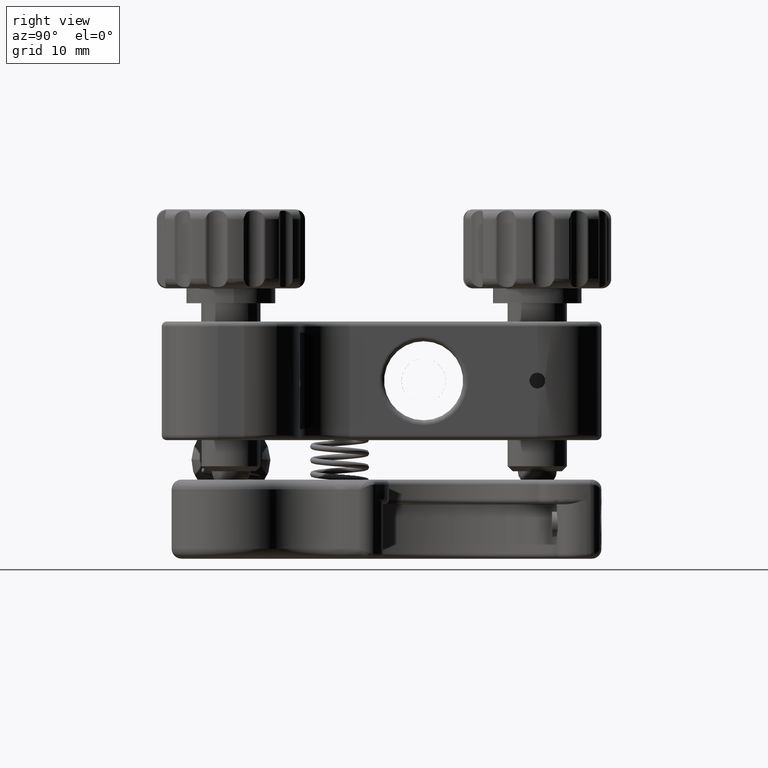
[diagram: clean part render]
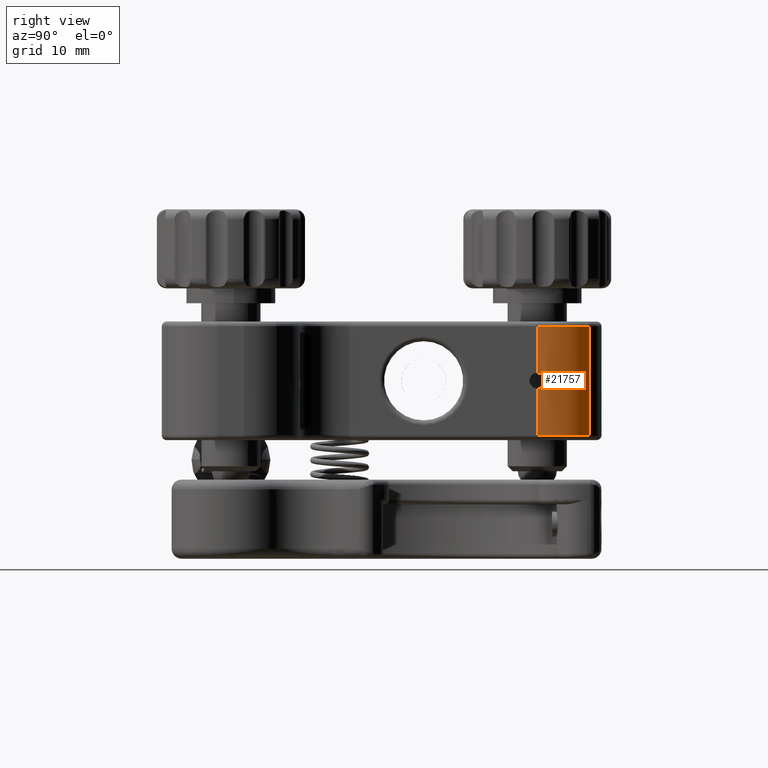
[diagram: same view with one face highlighted and labeled with its STEP entity id]
A machine part, right view. The second image highlights one B-rep face of the part: STEP entity #21757.
In plain terms, the highlighted cylindrical surface (partial cylindrical patch) has radius 7 mm, axis along (0, 0, 1).
Its self-contained STEP definition (entity closure, byte-faithful):
#242 = DIRECTION ( 'NONE',  ( 1.526985608128896422E-16, 6.608597787526282327E-17, 1.000000000000000000 ) ) ;
#357 = B_SPLINE_CURVE_WITH_KNOTS ( 'NONE', 3,
 ( #16258, #19820, #10726, #7280, #2014, #9257, #14578, #10957, #8910, #19559, #10607, #15927, #21300, #9143 ),
 .UNSPECIFIED., .F., .F.,
 ( 4, 2, 2, 2, 2, 2, 4 ),
 ( 0.000000000000000000, 0.0003128303503072560744, 0.0006256607006145121488, 0.001251321401229009769, 0.001564151751536258309, 0.001876982101843506631, 0.002502642802458018238 ),
 .UNSPECIFIED. ) ;
#1129 = CYLINDRICAL_SURFACE ( 'NONE', #8496, 6.999999999999992006 ) ;
#2014 = CARTESIAN_POINT ( 'NONE',  ( -47.59911815931402401, 31.49197153707026331, 0.6394026485472136256 ) ) ;
#2753 = LINE ( 'NONE', #9452, #16374 ) ;
#2834 = FACE_OUTER_BOUND ( 'NONE', #20116, .T. ) ;
#2954 = DIRECTION ( 'NONE',  ( 1.526985608128896422E-16, 6.608597787526282327E-17, 1.000000000000000000 ) ) ;
#3072 = EDGE_CURVE ( 'NONE', #20491, #7126, #357, .T. ) ;
#3120 = ORIENTED_EDGE ( 'NONE', *, *, #6143, .T. ) ;
#3160 = CARTESIAN_POINT ( 'NONE',  ( -54.58220024130405079, 30.99999999999994316, 5.500000000000006217 ) ) ;
#3630 = EDGE_CURVE ( 'NONE', #20491, #18432, #2753, .T. ) ;
#4052 = ORIENTED_EDGE ( 'NONE', *, *, #20620, .T. ) ;
#5299 = DIRECTION ( 'NONE',  ( -1.526985608128896422E-16, -6.608597787526282327E-17, -1.000000000000000000 ) ) ;
#5392 = DIRECTION ( 'NONE',  ( 1.526985608128896422E-16, 6.608597787526282327E-17, 1.000000000000000000 ) ) ;
#5457 = AXIS2_PLACEMENT_3D ( 'NONE', #9107, #19527, #19024 ) ;
#5885 = ORIENTED_EDGE ( 'NONE', *, *, #3630, .F. ) ;
#6143 = EDGE_CURVE ( 'NONE', #10446, #18432, #10915, .T. ) ;
#6549 = ORIENTED_EDGE ( 'NONE', *, *, #3072, .T. ) ;
#7126 = VERTEX_POINT ( 'NONE', #17946 ) ;
#7179 = CARTESIAN_POINT ( 'NONE',  ( -49.95213544694114205, 36.24999999999995026, 5.499999999999998224 ) ) ;
#7280 = CARTESIAN_POINT ( 'NONE',  ( -47.59315459229183176, 31.40328554863170041, 0.6988233077634544710 ) ) ;
#8157 = CARTESIAN_POINT ( 'NONE',  ( -54.58220024130411474, 30.99999999999994316, -5.999999999999992895 ) ) ;
#8496 = AXIS2_PLACEMENT_3D ( 'NONE', #8157, #2954, #11718 ) ;
#8799 = VERTEX_POINT ( 'NONE', #11708 ) ;
#8802 = CIRCLE ( 'NONE', #5457, 6.999999999999992006 ) ;
#8910 = CARTESIAN_POINT ( 'NONE',  ( -47.62560615490236415, 31.77937269299374634, -0.2087427562612615417 ) ) ;
#9107 = CARTESIAN_POINT ( 'NONE',  ( -54.58220024130411474, 30.99999999999994316, -5.499999999999992895 ) ) ;
#9143 = CARTESIAN_POINT ( 'NONE',  ( -47.58220024130410764, 30.99999999999994316, -0.8000000000000012657 ) ) ;
#9257 = CARTESIAN_POINT ( 'NONE',  ( -47.61705126712233493, 31.71315159387564364, 0.4182125837161660975 ) ) ;
#9452 = CARTESIAN_POINT ( 'NONE',  ( -47.58220024130410764, 30.99999999999994316, -6.000000000000001776 ) ) ;
#10115 = ORIENTED_EDGE ( 'NONE', *, *, #20755, .F. ) ;
#10446 = VERTEX_POINT ( 'NONE', #7179 ) ;
#10607 = CARTESIAN_POINT ( 'NONE',  ( -47.61117838852523221, 31.64066944041366725, -0.4906018938186298972 ) ) ;
#10726 = CARTESIAN_POINT ( 'NONE',  ( -47.58466682728106179, 31.20958157682242984, 0.7791462069889498743 ) ) ;
#10915 = CIRCLE ( 'NONE', #20499, 6.999999999999992006 ) ;
#10957 = CARTESIAN_POINT ( 'NONE',  ( -47.62807340611181672, 31.80007497510262837, -0.1038509294795479376 ) ) ;
#11698 = CARTESIAN_POINT ( 'NONE',  ( -49.95213544694119889, 36.24999999999995026, -5.500000000000001776 ) ) ;
#11708 = CARTESIAN_POINT ( 'NONE',  ( -47.58220024130410764, 30.99999999999994316, -5.500000000000001776 ) ) ;
#11718 = DIRECTION ( 'NONE',  ( -1.000000000000000000, 0.000000000000000000, 1.239088197126292296E-16 ) ) ;
#12227 = CARTESIAN_POINT ( 'NONE',  ( -47.58220024130410764, 30.99999999999994316, 5.499999999999998224 ) ) ;
#12374 = LINE ( 'NONE', #13257, #20420 ) ;
#13257 = CARTESIAN_POINT ( 'NONE',  ( -47.58220024130410764, 30.99999999999994316, -6.000000000000001776 ) ) ;
#14578 = CARTESIAN_POINT ( 'NONE',  ( -47.62804745927792283, 31.79984942779633172, 0.2094297452871510257 ) ) ;
#15403 = DIRECTION ( 'NONE',  ( 1.000000000000000000, 0.000000000000000000, -1.239088197126292296E-16 ) ) ;
#15927 = CARTESIAN_POINT ( 'NONE',  ( -47.59301916846070668, 31.41684523052366274, -0.7147239006662191585 ) ) ;
#16258 = CARTESIAN_POINT ( 'NONE',  ( -47.58220024130410764, 30.99999999999994316, 0.7999999999999960476 ) ) ;
#16374 = VECTOR ( 'NONE', #18065, 1000.000000000000000 ) ;
#16597 = ORIENTED_EDGE ( 'NONE', *, *, #17959, .T. ) ;
#17946 = CARTESIAN_POINT ( 'NONE',  ( -47.58220024130410764, 30.99999999999994316, -0.8000000000000012657 ) ) ;
#17959 = EDGE_CURVE ( 'NONE', #8799, #20395, #8802, .T. ) ;
#18065 = DIRECTION ( 'NONE',  ( 1.526985608128896422E-16, 6.608597787526282327E-17, 1.000000000000000000 ) ) ;
#18432 = VERTEX_POINT ( 'NONE', #12227 ) ;
#18900 = VECTOR ( 'NONE', #242, 1000.000000000000000 ) ;
#19024 = DIRECTION ( 'NONE',  ( 1.000000000000000000, 0.000000000000000000, -1.239088197126292296E-16 ) ) ;
#19392 = LINE ( 'NONE', #22657, #18900 ) ;
#19527 = DIRECTION ( 'NONE',  ( 1.526985608128896422E-16, 6.608597787526282327E-17, 1.000000000000000000 ) ) ;
#19559 = CARTESIAN_POINT ( 'NONE',  ( -47.61709617540723372, 31.69924847427152415, -0.4025504988256787819 ) ) ;
#19788 = CARTESIAN_POINT ( 'NONE',  ( -47.58220024130410764, 30.99999999999994316, 0.7999999999999960476 ) ) ;
#19820 = CARTESIAN_POINT ( 'NONE',  ( -47.58220024130411474, 31.10578481232447956, 0.7999999999999960476 ) ) ;
#20116 = EDGE_LOOP ( 'NONE', ( #4052, #3120, #5885, #6549, #10115, #16597 ) ) ;
#20395 = VERTEX_POINT ( 'NONE', #11698 ) ;
#20420 = VECTOR ( 'NONE', #5392, 1000.000000000000000 ) ;
#20491 = VERTEX_POINT ( 'NONE', #19788 ) ;
#20499 = AXIS2_PLACEMENT_3D ( 'NONE', #3160, #5299, #15403 ) ;
#20620 = EDGE_CURVE ( 'NONE', #20395, #10446, #19392, .T. ) ;
#20755 = EDGE_CURVE ( 'NONE', #8799, #7126, #12374, .T. ) ;
#21300 = CARTESIAN_POINT ( 'NONE',  ( -47.58220024130410764, 31.21156925075649013, -0.8000000000000015987 ) ) ;
#21757 = ADVANCED_FACE ( 'NONE', ( #2834 ), #1129, .T. ) ;
#22657 = CARTESIAN_POINT ( 'NONE',  ( -49.95213544694119889, 36.24999999999995026, -6.000000000000001776 ) ) ;